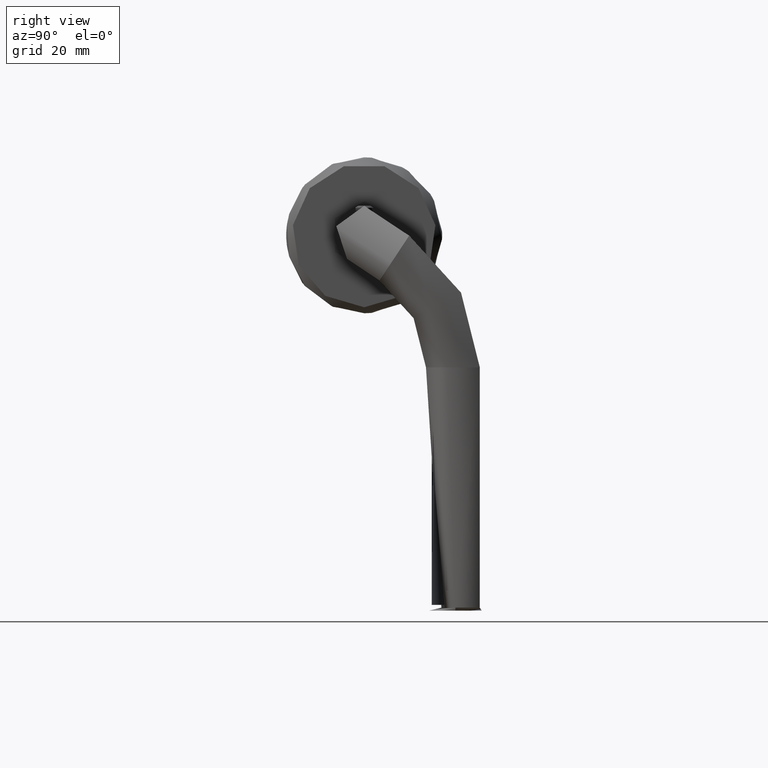
[diagram: clean part render]
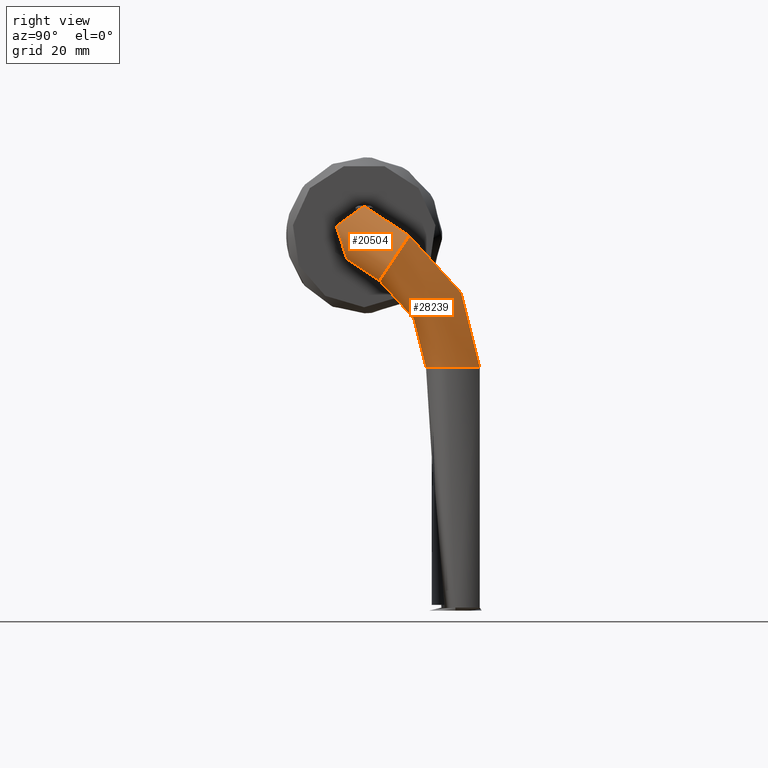
[diagram: same view with one multi-face feature highlighted, each face labeled with its STEP entity id]
A machine part, right view. The highlighted faces form ONE feature: a constant-radius fillet chain: 2 tangent blend faces with common blend radius 9.8 mm. The faces share edges in the B-rep.
Their STEP definitions:
[1] entity #28239 (Torus):
#142 = AXIS2_PLACEMENT_3D ( 'NONE', #7473, #33259, #36137 ) ;
#7473 = CARTESIAN_POINT ( 'NONE',  ( -53.86223608625936500, 30.40000124250795800, -65.20284601116590300 ) ) ;
#7616 = TOROIDAL_SURFACE ( 'NONE', #20760, 44.52816776970445300, 9.799999999999998900 ) ;
#7875 = DIRECTION ( 'NONE',  ( 1.000000000000000000, 0.0000000000000000000, 0.0000000000000000000 ) ) ;
#8982 = FACE_OUTER_BOUND ( 'NONE', #14661, .T. ) ;
#9115 = CIRCLE ( 'NONE', #25991, 9.800000000000000700 ) ;
#9817 = ORIENTED_EDGE ( 'NONE', *, *, #11296, .F. ) ;
#10553 = CIRCLE ( 'NONE', #142, 9.800000000000002500 ) ;
#10584 = DIRECTION ( 'NONE',  ( 0.5527708151871552100, -0.8333333221930632200, -1.336832283188240300E-008 ) ) ;
#11296 = EDGE_CURVE ( 'NONE', #35061, #35061, #9115, .T. ) ;
#12397 = EDGE_LOOP ( 'NONE', ( #23186 ) ) ;
#13146 = CARTESIAN_POINT ( 'NONE',  ( -53.86223615867762500, -14.12816652719650400, -65.20284601116587500 ) ) ;
#14661 = EDGE_LOOP ( 'NONE', ( #9817 ) ) ;
#15261 = FACE_OUTER_BOUND ( 'NONE', #12397, .T. ) ;
#17414 = EDGE_CURVE ( 'NONE', #28785, #28785, #10553, .T. ) ;
#20760 = AXIS2_PLACEMENT_3D ( 'NONE', #13146, #33792, #7875 ) ;
#23186 = ORIENTED_EDGE ( 'NONE', *, *, #17414, .T. ) ;
#23237 = CARTESIAN_POINT ( 'NONE',  ( -9.949874806381950900, 14.99999999999999800, -70.62000000000001900 ) ) ;
#25991 = AXIS2_PLACEMENT_3D ( 'NONE', #28020, #10584, #36638 ) ;
#28020 = CARTESIAN_POINT ( 'NONE',  ( -16.75543013994906600, 10.48570500930490100, -65.20284601116590300 ) ) ;
#28239 = ADVANCED_FACE ( 'NONE', ( #8982, #15261 ), #7616, .T. ) ;
#28785 = VERTEX_POINT ( 'NONE', #28882 ) ;
#28882 = CARTESIAN_POINT ( 'NONE',  ( -53.86223615867762500, 38.56666779999998300, -70.62000000000001900 ) ) ;
#33259 = DIRECTION ( 'NONE',  ( 0.9999999999999998900, -1.665334536937734800E-016, -1.336832283188239800E-008 ) ) ;
#33792 = DIRECTION ( 'NONE',  ( 0.0000000000000000000, -9.113429509478861300E-032, -1.000000000000000000 ) ) ;
#35061 = VERTEX_POINT ( 'NONE', #23237 ) ;
#36137 = DIRECTION ( 'NONE',  ( -7.389618254040301100E-009, 0.8333333221930634400, -0.5527708151871548700 ) ) ;
#36638 = DIRECTION ( 'NONE',  ( 0.6944444217925624900, 0.4606423459892954300, -0.5527708151871549800 ) ) ;
[2] entity #20504 (Torus):
#79 = EDGE_LOOP ( 'NONE', ( #31799 ) ) ;
#177 = CARTESIAN_POINT ( 'NONE',  ( 1.734723475976807100E-015, -1.734723475976881100E-015, -52.61999999999998300 ) ) ;
#217 = CARTESIAN_POINT ( 'NONE',  ( -9.799999999999997200, -1.734723475976881100E-015, -52.61999999999998300 ) ) ;
#560 = TOROIDAL_SURFACE ( 'NONE', #23464, 12.58284601116589700, 9.799999999999998900 ) ;
#5930 = EDGE_CURVE ( 'NONE', #24312, #24312, #16872, .T. ) ;
#9115 = CIRCLE ( 'NONE', #25991, 9.800000000000000700 ) ;
#10584 = DIRECTION ( 'NONE',  ( 0.5527708151871552100, -0.8333333221930632200, -1.336832283188240300E-008 ) ) ;
#11296 = EDGE_CURVE ( 'NONE', #35061, #35061, #9115, .T. ) ;
#13556 = FACE_OUTER_BOUND ( 'NONE', #25572, .T. ) ;
#14386 = DIRECTION ( 'NONE',  ( -0.8333333221930633300, -0.5527708151871553200, -2.958228394578794300E-031 ) ) ;
#14467 = FACE_OUTER_BOUND ( 'NONE', #79, .T. ) ;
#16321 = AXIS2_PLACEMENT_3D ( 'NONE', #217, #20303, #24889 ) ;
#16872 = CIRCLE ( 'NONE', #16321, 9.799999999999998900 ) ;
#17771 = CARTESIAN_POINT ( 'NONE',  ( -16.75543004696662000, 10.48570486912860900, -52.61999999999998300 ) ) ;
#20303 = DIRECTION ( 'NONE',  ( 0.0000000000000000000, 9.113429509478861300E-032, 1.000000000000000000 ) ) ;
#20504 = ADVANCED_FACE ( 'NONE', ( #13556, #14467 ), #560, .T. ) ;
#23237 = CARTESIAN_POINT ( 'NONE',  ( -9.949874806381950900, 14.99999999999999800, -70.62000000000001900 ) ) ;
#23464 = AXIS2_PLACEMENT_3D ( 'NONE', #17771, #14386, #34777 ) ;
#24312 = VERTEX_POINT ( 'NONE', #177 ) ;
#24889 = DIRECTION ( 'NONE',  ( 1.000000000000000000, 0.0000000000000000000, 0.0000000000000000000 ) ) ;
#25572 = EDGE_LOOP ( 'NONE', ( #25884 ) ) ;
#25884 = ORIENTED_EDGE ( 'NONE', *, *, #5930, .F. ) ;
#25991 = AXIS2_PLACEMENT_3D ( 'NONE', #28020, #10584, #36638 ) ;
#28020 = CARTESIAN_POINT ( 'NONE',  ( -16.75543013994906600, 10.48570500930490100, -65.20284601116590300 ) ) ;
#31799 = ORIENTED_EDGE ( 'NONE', *, *, #11296, .T. ) ;
#34777 = DIRECTION ( 'NONE',  ( 0.5527708151871553200, -0.8333333221930633300, 0.0000000000000000000 ) ) ;
#35061 = VERTEX_POINT ( 'NONE', #23237 ) ;
#36638 = DIRECTION ( 'NONE',  ( 0.6944444217925624900, 0.4606423459892954300, -0.5527708151871549800 ) ) ;